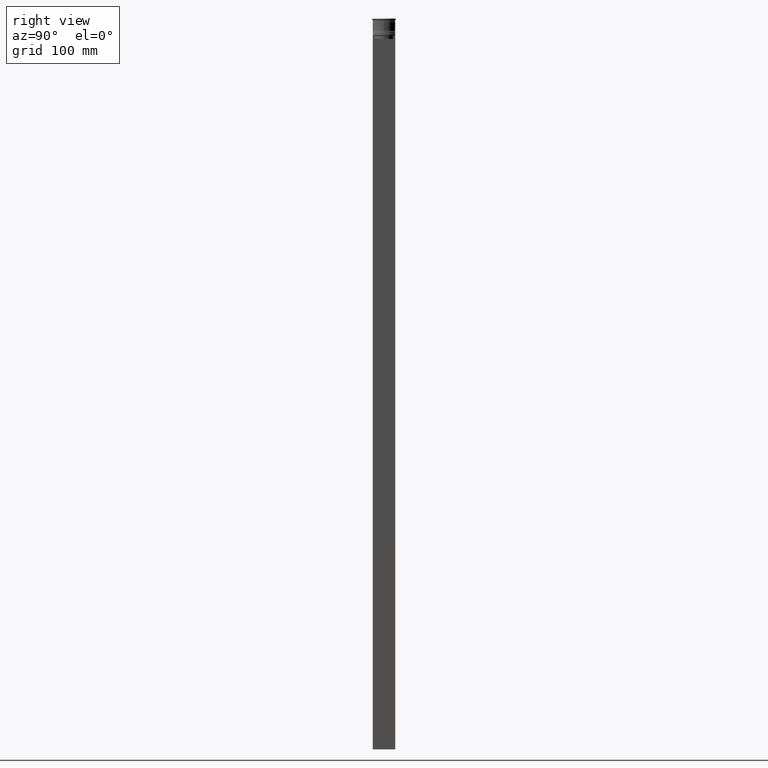
[diagram: clean part render]
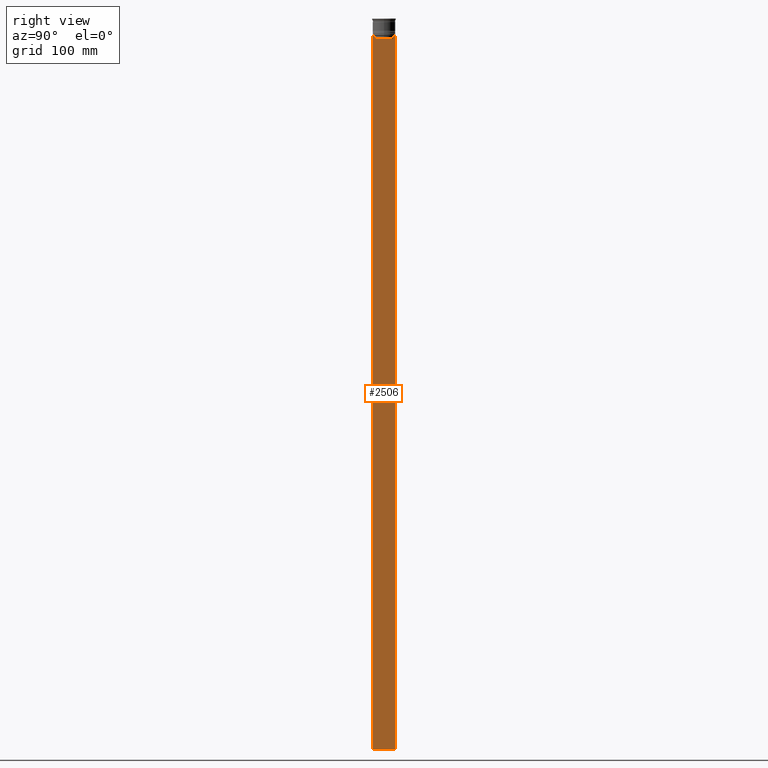
[diagram: same view with one face highlighted and labeled with its STEP entity id]
A machine part, right view. The second image highlights one B-rep face of the part: STEP entity #2506.
In plain terms, the highlighted planar face has unit normal (-1, 0, 0).
Its self-contained STEP definition (entity closure, byte-faithful):
#1 = VERTEX_POINT ( 'NONE', #2116 ) ;
#33 = VERTEX_POINT ( 'NONE', #840 ) ;
#43 = DIRECTION ( 'NONE',  ( 0.000000000000000000, 0.000000000000000000, -1.000000000000000000 ) ) ;
#62 = VERTEX_POINT ( 'NONE', #721 ) ;
#108 = LINE ( 'NONE', #2220, #1140 ) ;
#122 = EDGE_CURVE ( 'NONE', #1178, #251, #2556, .T. ) ;
#156 = VERTEX_POINT ( 'NONE', #599 ) ;
#168 = LINE ( 'NONE', #609, #2410 ) ;
#173 = EDGE_CURVE ( 'NONE', #33, #1911, #2656, .T. ) ;
#188 = DIRECTION ( 'NONE',  ( 0.000000000000000000, 0.000000000000000000, 1.000000000000000000 ) ) ;
#209 = CARTESIAN_POINT ( 'NONE',  ( 0.5000000000000000000, 7.899999999999994138, -17.00000000000000000 ) ) ;
#213 = CARTESIAN_POINT ( 'NONE',  ( 0.5000000000000000000, -9.500000000000001776, -14.00000000000000178 ) ) ;
#251 = VERTEX_POINT ( 'NONE', #2593 ) ;
#284 = LINE ( 'NONE', #2559, #1755 ) ;
#309 = CARTESIAN_POINT ( 'NONE',  ( 0.5000000000000000000, -7.884161337770803080, -14.50000000000000000 ) ) ;
#340 = DIRECTION ( 'NONE',  ( -0.000000000000000000, -0.000000000000000000, 1.000000000000000000 ) ) ;
#389 = FACE_OUTER_BOUND ( 'NONE', #1065, .T. ) ;
#398 = CARTESIAN_POINT ( 'NONE',  ( 0.5000000000000000000, 9.499999999999998224, -14.00000000000000178 ) ) ;
#445 = B_SPLINE_CURVE_WITH_KNOTS ( 'NONE', 3,
 ( #309, #2225, #1143, #788 ),
 .UNSPECIFIED., .F., .F.,
 ( 4, 4 ),
 ( 0.03673372442973153046, 0.03744389749832059688 ),
 .UNSPECIFIED. ) ;
#495 = VECTOR ( 'NONE', #513, 1000.000000000000000 ) ;
#508 = DIRECTION ( 'NONE',  ( 0.000000000000000000, -1.000000000000000000, 0.000000000000000000 ) ) ;
#513 = DIRECTION ( 'NONE',  ( 0.000000000000000000, 1.000000000000000000, 0.000000000000000000 ) ) ;
#520 = CARTESIAN_POINT ( 'NONE',  ( 0.5000000000000000000, 8.385105843100605583, -14.00000000000000178 ) ) ;
#524 = EDGE_CURVE ( 'NONE', #1154, #62, #168, .T. ) ;
#560 = ORIENTED_EDGE ( 'NONE', *, *, #1833, .T. ) ;
#597 = EDGE_CURVE ( 'NONE', #787, #986, #284, .T. ) ;
#599 = CARTESIAN_POINT ( 'NONE',  ( 0.5000000000000000000, 7.884161337770803080, -14.50000000000000000 ) ) ;
#609 = CARTESIAN_POINT ( 'NONE',  ( 0.5000000000000000000, -9.500000000000001776, -14.00000000000000178 ) ) ;
#610 = B_SPLINE_CURVE_WITH_KNOTS ( 'NONE', 3,
 ( #1837, #824, #1023, #2219 ),
 .UNSPECIFIED., .F., .F.,
 ( 4, 4 ),
 ( 0.01426761478740281447, 0.01497538974438914448 ),
 .UNSPECIFIED. ) ;
#631 = EDGE_CURVE ( 'NONE', #156, #1, #1644, .T. ) ;
#686 = CARTESIAN_POINT ( 'NONE',  ( 0.5000000000000000000, -9.500000000000001776, -614.0000000000000000 ) ) ;
#688 = ORIENTED_EDGE ( 'NONE', *, *, #524, .T. ) ;
#721 = CARTESIAN_POINT ( 'NONE',  ( 0.5000000000000000000, 9.386692708297204035, -14.00000000000000178 ) ) ;
#726 = DIRECTION ( 'NONE',  ( 0.000000000000000000, -1.000000000000000000, 0.000000000000000000 ) ) ;
#742 = CARTESIAN_POINT ( 'NONE',  ( 0.5000000000000000000, -9.500000000000001776, -14.00000000000000178 ) ) ;
#787 = VERTEX_POINT ( 'NONE', #1002 ) ;
#788 = CARTESIAN_POINT ( 'NONE',  ( 0.5000000000000000000, -8.385105843100605583, -14.00000000000000178 ) ) ;
#791 = EDGE_CURVE ( 'NONE', #1, #33, #1223, .T. ) ;
#824 = CARTESIAN_POINT ( 'NONE',  ( 0.5000000000000000000, 8.218133718559618828, -14.16667606394327983 ) ) ;
#840 = CARTESIAN_POINT ( 'NONE',  ( 0.5000000000000000000, -7.884161337770803080, -17.00000000000000000 ) ) ;
#877 = ORIENTED_EDGE ( 'NONE', *, *, #173, .T. ) ;
#929 = VECTOR ( 'NONE', #726, 1000.000000000000000 ) ;
#986 = VERTEX_POINT ( 'NONE', #742 ) ;
#1002 = CARTESIAN_POINT ( 'NONE',  ( 0.5000000000000000000, -9.386692708297204035, -14.00000000000000178 ) ) ;
#1005 = VECTOR ( 'NONE', #340, 1000.000000000000000 ) ;
#1018 = DIRECTION ( 'NONE',  ( 0.000000000000000000, -1.000000000000000000, 0.000000000000000000 ) ) ;
#1023 = CARTESIAN_POINT ( 'NONE',  ( 0.5000000000000000000, 8.051152811434374001, -14.33334332653219079 ) ) ;
#1065 = EDGE_LOOP ( 'NONE', ( #1515, #1222, #1285, #1267, #877, #560, #2327, #1419, #1647, #2543, #2526, #688 ) ) ;
#1073 = EDGE_CURVE ( 'NONE', #1441, #156, #610, .T. ) ;
#1128 = CARTESIAN_POINT ( 'NONE',  ( 0.5000000000000000000, -9.500000000000001776, -14.00000000000000178 ) ) ;
#1140 = VECTOR ( 'NONE', #2023, 1000.000000000000000 ) ;
#1143 = CARTESIAN_POINT ( 'NONE',  ( 0.5000000000000000000, -8.218133703942523738, -14.16667607853445787 ) ) ;
#1154 = VERTEX_POINT ( 'NONE', #398 ) ;
#1157 = CARTESIAN_POINT ( 'NONE',  ( 0.5000000000000000000, -7.884161337770803080, -14.50000000000000000 ) ) ;
#1178 = VERTEX_POINT ( 'NONE', #1404 ) ;
#1210 = PLANE ( 'NONE',  #2580 ) ;
#1222 = ORIENTED_EDGE ( 'NONE', *, *, #1073, .T. ) ;
#1223 = LINE ( 'NONE', #209, #1885 ) ;
#1267 = ORIENTED_EDGE ( 'NONE', *, *, #791, .T. ) ;
#1285 = ORIENTED_EDGE ( 'NONE', *, *, #631, .T. ) ;
#1308 = CARTESIAN_POINT ( 'NONE',  ( 0.5000000000000000000, -9.500000000000001776, 5.026297590440445440 ) ) ;
#1352 = EDGE_CURVE ( 'NONE', #1490, #787, #1499, .T. ) ;
#1355 = DIRECTION ( 'NONE',  ( 0.000000000000000000, -1.000000000000000000, 0.000000000000000000 ) ) ;
#1404 = CARTESIAN_POINT ( 'NONE',  ( 0.5000000000000000000, -9.500000000000001776, -614.0000000000000000 ) ) ;
#1419 = ORIENTED_EDGE ( 'NONE', *, *, #597, .T. ) ;
#1441 = VERTEX_POINT ( 'NONE', #520 ) ;
#1490 = VERTEX_POINT ( 'NONE', #2251 ) ;
#1499 = LINE ( 'NONE', #1128, #1926 ) ;
#1515 = ORIENTED_EDGE ( 'NONE', *, *, #1686, .T. ) ;
#1522 = LINE ( 'NONE', #213, #929 ) ;
#1611 = DIRECTION ( 'NONE',  ( 0.000000000000000000, -1.000000000000000000, 0.000000000000000000 ) ) ;
#1614 = CARTESIAN_POINT ( 'NONE',  ( 0.5000000000000000000, 7.884161337770803080, 0.000000000000000000 ) ) ;
#1644 = LINE ( 'NONE', #1614, #2491 ) ;
#1647 = ORIENTED_EDGE ( 'NONE', *, *, #1718, .T. ) ;
#1686 = EDGE_CURVE ( 'NONE', #62, #1441, #1522, .T. ) ;
#1718 = EDGE_CURVE ( 'NONE', #986, #1178, #1893, .T. ) ;
#1755 = VECTOR ( 'NONE', #1355, 1000.000000000000000 ) ;
#1814 = CARTESIAN_POINT ( 'NONE',  ( 0.5000000000000000000, -9.500000000000001776, 5.026297590440445440 ) ) ;
#1833 = EDGE_CURVE ( 'NONE', #1911, #1490, #445, .T. ) ;
#1837 = CARTESIAN_POINT ( 'NONE',  ( 0.5000000000000000000, 8.385105843100605583, -14.00000000000000178 ) ) ;
#1885 = VECTOR ( 'NONE', #1018, 1000.000000000000000 ) ;
#1893 = LINE ( 'NONE', #1308, #2106 ) ;
#1911 = VERTEX_POINT ( 'NONE', #1157 ) ;
#1926 = VECTOR ( 'NONE', #508, 1000.000000000000000 ) ;
#2023 = DIRECTION ( 'NONE',  ( 0.000000000000000000, 0.000000000000000000, -1.000000000000000000 ) ) ;
#2049 = DIRECTION ( 'NONE',  ( -1.000000000000000000, 0.000000000000000000, 0.000000000000000000 ) ) ;
#2106 = VECTOR ( 'NONE', #43, 1000.000000000000000 ) ;
#2116 = CARTESIAN_POINT ( 'NONE',  ( 0.5000000000000000000, 7.884161337770803080, -17.00000000000000000 ) ) ;
#2196 = CARTESIAN_POINT ( 'NONE',  ( 0.5000000000000000000, -7.884161337770803080, 0.000000000000000000 ) ) ;
#2219 = CARTESIAN_POINT ( 'NONE',  ( 0.5000000000000000000, 7.884161337770803080, -14.50000000000000000 ) ) ;
#2220 = CARTESIAN_POINT ( 'NONE',  ( 0.5000000000000000000, 9.499999999999998224, 5.026297590440445440 ) ) ;
#2225 = CARTESIAN_POINT ( 'NONE',  ( 0.5000000000000000000, -8.051152795888546265, -14.33334334204685057 ) ) ;
#2251 = CARTESIAN_POINT ( 'NONE',  ( 0.5000000000000000000, -8.385105843100605583, -14.00000000000000178 ) ) ;
#2267 = EDGE_CURVE ( 'NONE', #1154, #251, #108, .T. ) ;
#2327 = ORIENTED_EDGE ( 'NONE', *, *, #1352, .T. ) ;
#2410 = VECTOR ( 'NONE', #1611, 1000.000000000000000 ) ;
#2440 = DIRECTION ( 'NONE',  ( 0.000000000000000000, 0.000000000000000000, -1.000000000000000000 ) ) ;
#2491 = VECTOR ( 'NONE', #2440, 1000.000000000000000 ) ;
#2506 = ADVANCED_FACE ( 'NONE', ( #389 ), #1210, .F. ) ;
#2526 = ORIENTED_EDGE ( 'NONE', *, *, #2267, .F. ) ;
#2543 = ORIENTED_EDGE ( 'NONE', *, *, #122, .T. ) ;
#2556 = LINE ( 'NONE', #686, #495 ) ;
#2559 = CARTESIAN_POINT ( 'NONE',  ( 0.5000000000000000000, -9.500000000000001776, -14.00000000000000178 ) ) ;
#2580 = AXIS2_PLACEMENT_3D ( 'NONE', #1814, #2049, #188 ) ;
#2593 = CARTESIAN_POINT ( 'NONE',  ( 0.5000000000000000000, 9.499999999999998224, -614.0000000000000000 ) ) ;
#2656 = LINE ( 'NONE', #2196, #1005 ) ;